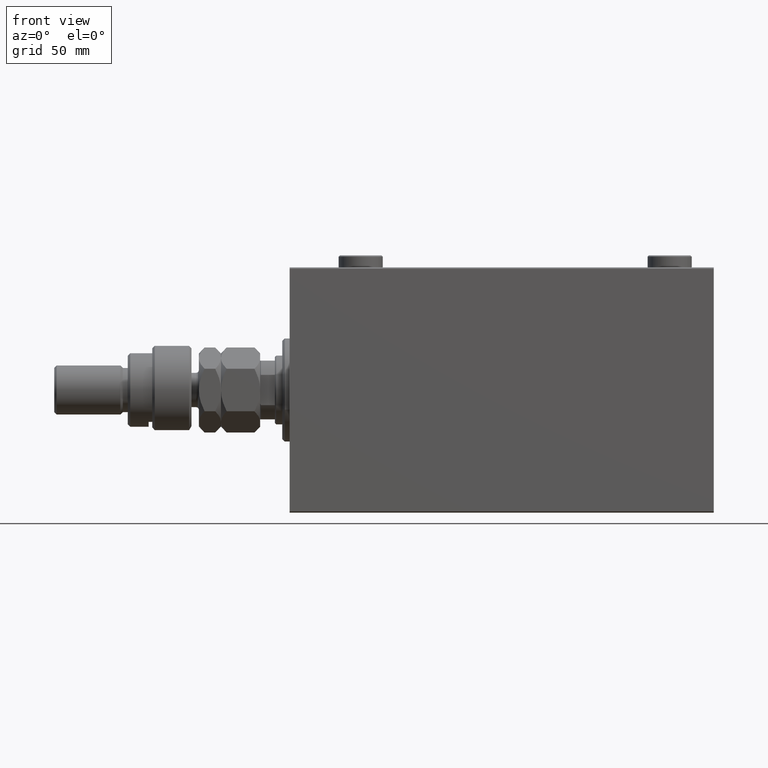
[diagram: clean part render]
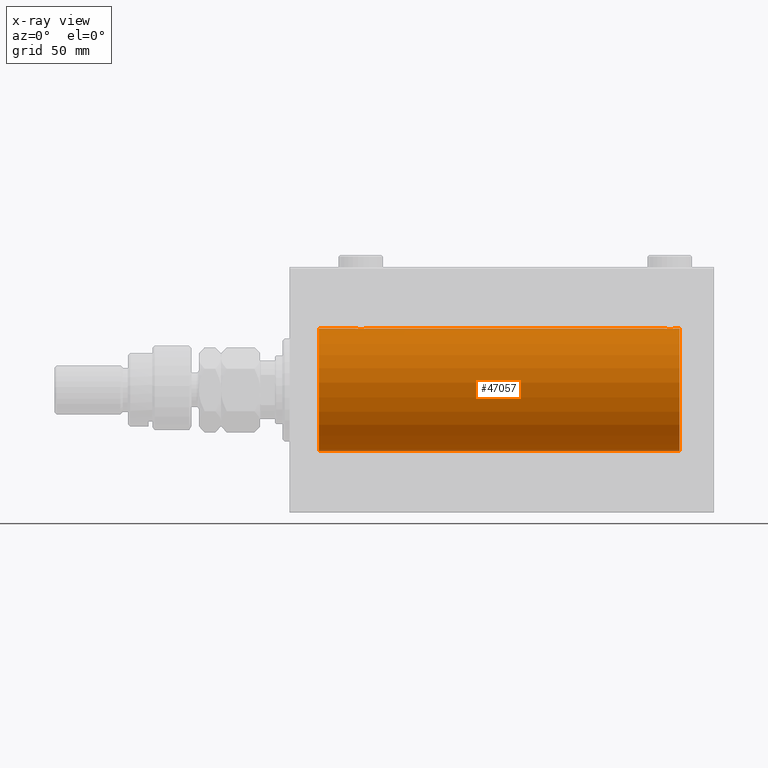
[diagram: x-ray — body ghosted, one internal face saturated and labeled with its STEP entity id]
A machine part, front view, then the same camera in x-ray: the body is ghosted and one INTERNAL B-rep face — a face not visible from any outside direction — is saturated and labeled: STEP entity #47057.
In plain terms, the highlighted cylindrical surface (partial cylindrical patch) has radius 25 mm, axis along (-1, -0, -0).
Its self-contained STEP definition (entity closure, byte-faithful):
#3 = CARTESIAN_POINT ( 'NONE',  ( 26.50000000000000355, -1.940558383798427991E-23, 25.00000000000000000 ) ) ;
#192 = CARTESIAN_POINT ( 'NONE',  ( 159.0000000000000000, 0.000000000000000000, 25.00000000000000000 ) ) ;
#864 = ORIENTED_EDGE ( 'NONE', *, *, #13426, .T. ) ;
#933 = CARTESIAN_POINT ( 'NONE',  ( 30.98749815834398547, -1.525407911884360868, -24.95379469572361941 ) ) ;
#960 = CARTESIAN_POINT ( 'NONE',  ( 28.35095609830903740, -2.419770561643910689, 24.88263927071751169 ) ) ;
#1096 = VERTEX_POINT ( 'NONE', #35780 ) ;
#1123 = CARTESIAN_POINT ( 'NONE',  ( 26.50000000000000355, -1.940558383798427991E-23, 25.00000000000000000 ) ) ;
#1200 = CARTESIAN_POINT ( 'NONE',  ( 31.16827641493957302, -1.255214705003178777, 24.96884293994577675 ) ) ;
#1308 = CARTESIAN_POINT ( 'NONE',  ( 152.5000000000000284, -1.941505016884693205E-23, 25.00000000000000000 ) ) ;
#2076 = AXIS2_PLACEMENT_3D ( 'NONE', #32610, #47707, #13884 ) ;
#2142 = CARTESIAN_POINT ( 'NONE',  ( 26.56650644760252789, -0.6588655613945865186, -24.99312727339970053 ) ) ;
#2173 = CARTESIAN_POINT ( 'NONE',  ( 157.4334935523974650, -0.6588655613945811895, 24.99312727339969697 ) ) ;
#2384 = CARTESIAN_POINT ( 'NONE',  ( 27.11814045851354749, -1.653834020452933373, -24.94550385189585739 ) ) ;
#2413 = CARTESIAN_POINT ( 'NONE',  ( 153.1158761721353585, -1.651251241585103724, 24.94567559498349141 ) ) ;
#2441 = CARTESIAN_POINT ( 'NONE',  ( 157.2476025101955202, -1.106703319666879848, -24.97594585958023572 ) ) ;
#2468 = DIRECTION ( 'NONE',  ( -1.000000000000000000, 0.000000000000000000, 0.000000000000000000 ) ) ;
#2679 = CARTESIAN_POINT ( 'NONE',  ( 156.5253618224308241, -1.987446652080262943, -24.92104239223420592 ) ) ;
#2887 = CARTESIAN_POINT ( 'NONE',  ( 156.1072384583841028, -2.247417070759893942, 24.89885693081946627 ) ) ;
#2918 = CARTESIAN_POINT ( 'NONE',  ( 155.8078834240581614, -2.371528299825743868, -24.88734287464371420 ) ) ;
#3130 = CARTESIAN_POINT ( 'NONE',  ( 152.7523974898044798, -1.106703319666880958, 24.97594585958023217 ) ) ;
#3415 = B_SPLINE_CURVE_WITH_KNOTS ( 'NONE', 3,
 ( #13380, #39416, #43561, #32348, #35756, #3130, #25042, #39893, #2413, #28704, #17995, #40128, #6539, #10197, #21403, #35511, #9718, #36231, #17039, #28458, #21639, #2887, #32832, #43315, #46728, #24810, #32111, #27983, #24330, #2173, #17759, #39659 ),
 .UNSPECIFIED., .F., .F.,
 ( 4, 2, 2, 2, 2, 2, 2, 2, 2, 2, 2, 2, 2, 2, 2, 4 ),
 ( 0.007821024441662296350, 0.008309723826317906223, 0.008798423210973516095, 0.009287122595629124233, 0.009775821980284732371, 0.01026452136494034224, 0.01075322074959595212, 0.01124192013425156025, 0.01173061951890716839, 0.01221931890356277826, 0.01270801828821838814, 0.01319671767287399627, 0.01368541705752960788, 0.01417411644218521602, 0.01466281582684082589, 0.01564021459615201268 ),
 .UNSPECIFIED. ) ;
#3462 = CARTESIAN_POINT ( 'NONE',  ( 12.00000000000001066, 3.061616997868382254E-15, -25.00000000000000000 ) ) ;
#3523 = EDGE_CURVE ( 'NONE', #18984, #30245, #23540, .T. ) ;
#3659 = CARTESIAN_POINT ( 'NONE',  ( 26.51582159942343253, -0.3254210271412225075, 24.99840249400844527 ) ) ;
#4325 = CARTESIAN_POINT ( 'NONE',  ( 159.0000000000000000, 0.000000000000000000, 0.000000000000000000 ) ) ;
#4346 = CARTESIAN_POINT ( 'NONE',  ( 31.50000000000000000, 3.061616978460586055E-15, -25.00000000000000000 ) ) ;
#4372 = CARTESIAN_POINT ( 'NONE',  ( 30.25084023924054932, -2.170728182476720836, 24.90574631553725027 ) ) ;
#4566 = CYLINDRICAL_SURFACE ( 'NONE', #25076, 25.00000000000000000 ) ;
#4589 = CARTESIAN_POINT ( 'NONE',  ( 31.24760251019550594, -1.106703319666880736, -24.97594585958023572 ) ) ;
#4618 = CARTESIAN_POINT ( 'NONE',  ( 31.24606379094067776, -1.109818057797414381, 24.97580694515543343 ) ) ;
#4620 = DIRECTION ( 'NONE',  ( -1.000000000000000000, -0.000000000000000000, -0.000000000000000000 ) ) ;
#4973 = DIRECTION ( 'NONE',  ( -1.000000000000000000, -0.000000000000000000, -0.000000000000000000 ) ) ;
#5069 = LINE ( 'NONE', #20167, #31647 ) ;
#5403 = CARTESIAN_POINT ( 'NONE',  ( 12.00000000000001066, 0.000000000000000000, 0.000000000000000000 ) ) ;
#5555 = CARTESIAN_POINT ( 'NONE',  ( 29.64904390169096970, -2.419770561643903584, -24.88263927071751525 ) ) ;
#5841 = VECTOR ( 'NONE', #4620, 1000.000000000000000 ) ;
#6212 = EDGE_CURVE ( 'NONE', #48020, #12065, #34189, .T. ) ;
#6332 = CARTESIAN_POINT ( 'NONE',  ( 154.1956433908370627, -2.372734907014177885, -24.88722742718433523 ) ) ;
#6539 = CARTESIAN_POINT ( 'NONE',  ( 153.8896320349114148, -2.245863995402900049, 24.89899750494197050 ) ) ;
#6810 = CARTESIAN_POINT ( 'NONE',  ( 152.5665064476025350, -0.6588655613945925138, -24.99312727339970408 ) ) ;
#7212 = VERTEX_POINT ( 'NONE', #33746 ) ;
#7465 = AXIS2_PLACEMENT_3D ( 'NONE', #5403, #2468, #17335 ) ;
#7549 = CARTESIAN_POINT ( 'NONE',  ( 28.19211657594193809, -2.371528299825748753, 24.88734287464370709 ) ) ;
#7740 = FACE_OUTER_BOUND ( 'NONE', #46467, .T. ) ;
#8030 = CARTESIAN_POINT ( 'NONE',  ( 28.67052319885731393, -2.483544361357271413, 24.87635491893501793 ) ) ;
#8206 = DIRECTION ( 'NONE',  ( -1.000000000000000000, -0.000000000000000000, -0.000000000000000000 ) ) ;
#8303 = ORIENTED_EDGE ( 'NONE', *, *, #22554, .T. ) ;
#8340 = CARTESIAN_POINT ( 'NONE',  ( 26.50000000000000355, -1.044046902370982825E-15, -25.00000000000000000 ) ) ;
#8626 = CARTESIAN_POINT ( 'NONE',  ( 159.0000000000000000, 0.000000000000000000, 25.00000000000000000 ) ) ;
#9278 = VERTEX_POINT ( 'NONE', #1308 ) ;
#9444 = CARTESIAN_POINT ( 'NONE',  ( 28.19564339083698457, -2.372734907014167227, -24.88722742718433878 ) ) ;
#9660 = VERTEX_POINT ( 'NONE', #36495 ) ;
#9690 = CARTESIAN_POINT ( 'NONE',  ( 26.83172358506043409, -1.255214705003176112, -24.96884293994578385 ) ) ;
#9718 = CARTESIAN_POINT ( 'NONE',  ( 154.8329350482194116, -2.499872792855079240, 24.87469871246083031 ) ) ;
#9860 = CIRCLE ( 'NONE', #2076, 25.00000000000000000 ) ;
#10197 = CARTESIAN_POINT ( 'NONE',  ( 154.1921165759419807, -2.371528299825747421, 24.88734287464370709 ) ) ;
#10252 = CARTESIAN_POINT ( 'NONE',  ( 26.75239748980448340, -1.106703319666886731, 24.97594585958023572 ) ) ;
#10464 = CARTESIAN_POINT ( 'NONE',  ( 153.4774322565980924, -1.989585286700259248, -24.92087098724765681 ) ) ;
#10695 = CARTESIAN_POINT ( 'NONE',  ( 152.5000000000000284, -1.405387377138226638E-14, -25.00000000000000000 ) ) ;
#11887 = CARTESIAN_POINT ( 'NONE',  ( 31.42014909220928942, -0.6480119923854199548, -24.99212088949390775 ) ) ;
#12065 = VERTEX_POINT ( 'NONE', #21905 ) ;
#12587 = LINE ( 'NONE', #16254, #40097 ) ;
#12867 = CARTESIAN_POINT ( 'NONE',  ( 29.16706495178059910, -2.499872792855075687, -24.87469871246082320 ) ) ;
#13117 = ORIENTED_EDGE ( 'NONE', *, *, #16117, .T. ) ;
#13380 = CARTESIAN_POINT ( 'NONE',  ( 152.5000000000000284, -1.941505016884693205E-23, 25.00000000000000000 ) ) ;
#13426 = EDGE_CURVE ( 'NONE', #29763, #9660, #27745, .T. ) ;
#13481 = EDGE_CURVE ( 'NONE', #9278, #45665, #3415, .T. ) ;
#13594 = CARTESIAN_POINT ( 'NONE',  ( 26.75393620905932934, -1.109818057797413493, -24.97580694515541921 ) ) ;
#13647 = CARTESIAN_POINT ( 'NONE',  ( 156.9874981583440956, -1.525407911884359535, -24.95379469572363007 ) ) ;
#13884 = DIRECTION ( 'NONE',  ( 0.000000000000000000, 0.000000000000000000, 1.000000000000000000 ) ) ;
#13918 = CARTESIAN_POINT ( 'NONE',  ( 26.62784030591392792, -0.8058335233485491855, 24.98746277938382576 ) ) ;
#14128 = CARTESIAN_POINT ( 'NONE',  ( 157.4201490922093001, -0.6480119923854171793, -24.99212088949391131 ) ) ;
#14374 = CARTESIAN_POINT ( 'NONE',  ( 154.6740342996054096, -2.484007091859770089, -24.87630842367762796 ) ) ;
#14819 = DIRECTION ( 'NONE',  ( -1.000000000000000000, -0.000000000000000000, -0.000000000000000000 ) ) ;
#14844 = CARTESIAN_POINT ( 'NONE',  ( 152.5000000000000284, -1.405387377138226638E-14, -25.00000000000000000 ) ) ;
#14871 = CARTESIAN_POINT ( 'NONE',  ( 26.57985090779071058, -0.6480119923854229524, 24.99212088949391131 ) ) ;
#14883 = ORIENTED_EDGE ( 'NONE', *, *, #13481, .T. ) ;
#15288 = ORIENTED_EDGE ( 'NONE', *, *, #30500, .F. ) ;
#15445 = EDGE_CURVE ( 'NONE', #9278, #12065, #12587, .T. ) ;
#15801 = CARTESIAN_POINT ( 'NONE',  ( 30.88412382786472321, -1.651251241585099061, -24.94567559498349496 ) ) ;
#15829 = CARTESIAN_POINT ( 'NONE',  ( 31.43349355239748277, -0.6588655613945849643, 24.99312727339970053 ) ) ;
#16012 = ORIENTED_EDGE ( 'NONE', *, *, #15445, .F. ) ;
#16117 = EDGE_CURVE ( 'NONE', #30245, #30010, #43239, .T. ) ;
#16254 = CARTESIAN_POINT ( 'NONE',  ( 159.0000000000000000, 0.000000000000000000, 25.00000000000000000 ) ) ;
#16447 = B_SPLINE_CURVE_WITH_KNOTS ( 'NONE', 3,
 ( #46993, #24592, #21428, #14128, #36015, #2441, #43341, #13647, #28482, #24833, #2679, #18021, #20707, #2918, #17544, #47230, #39681, #43105, #14374, #17787, #6332, #28970, #17067, #10464, #21668, #25310, #35536, #29213, #44061, #6810, #36500, #10695 ),
 .UNSPECIFIED., .F., .F.,
 ( 4, 2, 2, 2, 2, 2, 2, 2, 2, 2, 2, 2, 2, 2, 2, 4 ),
 ( 0.007821024441662285942, 0.008309723826317894080, 0.008798423210973503952, 0.009287122595629112090, 0.009775821980284720228, 0.01026452136494033010, 0.01075322074959593824, 0.01124192013425154638, 0.01173061951890715451, 0.01221931890356276265, 0.01270801828821837426, 0.01319671767287398240, 0.01368541705752959053, 0.01417411644218519867, 0.01466281582684080681, 0.01564021459615199186 ),
 .UNSPECIFIED. ) ;
#16767 = CARTESIAN_POINT ( 'NONE',  ( 27.34878866440888245, -1.884161199660611574, -24.92916496727982079 ) ) ;
#16890 = VECTOR ( 'NONE', #4973, 1000.000000000000000 ) ;
#16933 = VECTOR ( 'NONE', #40644, 1000.000000000000000 ) ;
#16991 = ORIENTED_EDGE ( 'NONE', *, *, #41926, .T. ) ;
#17039 = CARTESIAN_POINT ( 'NONE',  ( 155.3259657003945904, -2.484007091859763872, 24.87630842367762796 ) ) ;
#17067 = CARTESIAN_POINT ( 'NONE',  ( 153.7491597607594827, -2.170728182476731938, -24.90574631553725027 ) ) ;
#17335 = DIRECTION ( 'NONE',  ( 0.000000000000000000, 0.000000000000000000, 1.000000000000000000 ) ) ;
#17544 = CARTESIAN_POINT ( 'NONE',  ( 155.6490439016910443, -2.419770561643905804, -24.88263927071751525 ) ) ;
#17759 = CARTESIAN_POINT ( 'NONE',  ( 157.5000000000000284, -0.3305063766663748903, 24.99999999999999289 ) ) ;
#17787 = CARTESIAN_POINT ( 'NONE',  ( 154.3543933385137166, -2.420689345803768155, -24.88254961038873603 ) ) ;
#17813 = CARTESIAN_POINT ( 'NONE',  ( 27.88963203491136511, -2.245863995402902269, 24.89899750494197761 ) ) ;
#17995 = CARTESIAN_POINT ( 'NONE',  ( 153.4746381775692328, -1.987446652080256948, 24.92104239223420592 ) ) ;
#18021 = CARTESIAN_POINT ( 'NONE',  ( 156.2538319542450154, -2.169003991399872433, -24.90589728951138326 ) ) ;
#18450 = VERTEX_POINT ( 'NONE', #192 ) ;
#18984 = VERTEX_POINT ( 'NONE', #8340 ) ;
#19006 = CARTESIAN_POINT ( 'NONE',  ( 30.65121133559112820, -1.884161199660616459, 24.92916496727982434 ) ) ;
#19208 = CARTESIAN_POINT ( 'NONE',  ( 31.49999999999998579, -0.1631750940176181774, -25.00000000000000355 ) ) ;
#19449 = CARTESIAN_POINT ( 'NONE',  ( 31.17011290280924385, -1.252049606094333800, -24.96900299967627390 ) ) ;
#19480 = CARTESIAN_POINT ( 'NONE',  ( 31.50000000000000000, -0.3305063766663733360, 25.00000000000000000 ) ) ;
#20167 = CARTESIAN_POINT ( 'NONE',  ( 159.0000000000000000, 3.061616997868382254E-15, -25.00000000000000000 ) ) ;
#20490 = ORIENTED_EDGE ( 'NONE', *, *, #22933, .F. ) ;
#20658 = CARTESIAN_POINT ( 'NONE',  ( 27.74915976075944712, -2.170728182476712842, -24.90574631553725027 ) ) ;
#20707 = CARTESIAN_POINT ( 'NONE',  ( 156.1103679650886704, -2.245863995402892943, -24.89899750494197406 ) ) ;
#21134 = CARTESIAN_POINT ( 'NONE',  ( 27.47743225659811017, -1.989585286700239486, -24.92087098724765326 ) ) ;
#21403 = CARTESIAN_POINT ( 'NONE',  ( 154.3509560983090978, -2.419770561643906248, 24.88263927071751169 ) ) ;
#21428 = CARTESIAN_POINT ( 'NONE',  ( 157.4841784005766101, -0.3254210271412171229, -24.99840249400844527 ) ) ;
#21639 = CARTESIAN_POINT ( 'NONE',  ( 155.8043566091630510, -2.372734907014173000, 24.88722742718433878 ) ) ;
#21668 = CARTESIAN_POINT ( 'NONE',  ( 153.3487886644088860, -1.884161199660627783, -24.92916496727982079 ) ) ;
#21905 = CARTESIAN_POINT ( 'NONE',  ( 31.50000000000000000, -4.224067783497237755E-16, 25.00000000000000000 ) ) ;
#22410 = CARTESIAN_POINT ( 'NONE',  ( 29.64560666148631896, -2.420689345803760606, 24.88254961038873958 ) ) ;
#22554 = EDGE_CURVE ( 'NONE', #1096, #7212, #5069, .T. ) ;
#22933 = EDGE_CURVE ( 'NONE', #18450, #45665, #27131, .T. ) ;
#23052 = DIRECTION ( 'NONE',  ( -1.000000000000000000, -0.000000000000000000, -0.000000000000000000 ) ) ;
#23366 = CARTESIAN_POINT ( 'NONE',  ( 30.98538033717095530, -1.528152964861310359, 24.95362559291379156 ) ) ;
#23540 = LINE ( 'NONE', #45690, #45291 ) ;
#23821 = CARTESIAN_POINT ( 'NONE',  ( 27.89276154161589716, -2.247417070759890390, -24.89885693081946982 ) ) ;
#24066 = CARTESIAN_POINT ( 'NONE',  ( 28.67403429960540251, -2.484007091859758098, -24.87630842367763151 ) ) ;
#24330 = CARTESIAN_POINT ( 'NONE',  ( 157.2460637909406955, -1.109818057797409718, 24.97580694515542632 ) ) ;
#24592 = CARTESIAN_POINT ( 'NONE',  ( 157.5000000000000284, -0.1631750940176158182, -25.00000000000000000 ) ) ;
#24740 = ORIENTED_EDGE ( 'NONE', *, *, #36915, .T. ) ;
#24810 = CARTESIAN_POINT ( 'NONE',  ( 156.8818595414864490, -1.653834020452942477, 24.94550385189585029 ) ) ;
#24833 = CARTESIAN_POINT ( 'NONE',  ( 156.6538333614934402, -1.881857718844723415, -24.92933960374834257 ) ) ;
#25042 = CARTESIAN_POINT ( 'NONE',  ( 152.8298870971907775, -1.252049606094326695, 24.96900299967627390 ) ) ;
#25076 = AXIS2_PLACEMENT_3D ( 'NONE', #4325, #14819, #33302 ) ;
#25101 = CARTESIAN_POINT ( 'NONE',  ( 27.47463817756919724, -1.987446652080264275, 24.92104239223420592 ) ) ;
#25310 = CARTESIAN_POINT ( 'NONE',  ( 153.1181404585136079, -1.653834020452949805, -24.94550385189584674 ) ) ;
#26052 = CARTESIAN_POINT ( 'NONE',  ( 31.50000000000000000, -4.224067783497237755E-16, 25.00000000000000000 ) ) ;
#26976 = DIRECTION ( 'NONE',  ( -1.000000000000000000, -0.000000000000000000, -0.000000000000000000 ) ) ;
#27131 = LINE ( 'NONE', #8626, #16890 ) ;
#27717 = CARTESIAN_POINT ( 'NONE',  ( 26.50000000000000355, -1.044046902370982825E-15, -25.00000000000000000 ) ) ;
#27745 = LINE ( 'NONE', #42592, #5841 ) ;
#27954 = CARTESIAN_POINT ( 'NONE',  ( 28.83676410361456988, -2.500125740978188738, -24.87467329022545570 ) ) ;
#27983 = CARTESIAN_POINT ( 'NONE',  ( 157.1682764149396121, -1.255214705003166564, 24.96884293994578385 ) ) ;
#28458 = CARTESIAN_POINT ( 'NONE',  ( 155.6456066614863403, -2.420689345803761938, 24.88254961038872892 ) ) ;
#28482 = CARTESIAN_POINT ( 'NONE',  ( 156.8841238278647268, -1.651251241585108165, -24.94567559498349141 ) ) ;
#28704 = CARTESIAN_POINT ( 'NONE',  ( 153.3461666385066451, -1.881857718844717642, 24.92933960374833546 ) ) ;
#28798 = EDGE_CURVE ( 'NONE', #1096, #18450, #9860, .T. ) ;
#28916 = CARTESIAN_POINT ( 'NONE',  ( 12.00000000000001066, 0.000000000000000000, 25.00000000000000000 ) ) ;
#28970 = CARTESIAN_POINT ( 'NONE',  ( 153.8927615416158687, -2.247417070759900604, -24.89885693081946627 ) ) ;
#29213 = CARTESIAN_POINT ( 'NONE',  ( 152.8317235850604732, -1.255214705003193432, -24.96884293994577675 ) ) ;
#29714 = CARTESIAN_POINT ( 'NONE',  ( 26.82988709719076681, -1.252049606094339351, 24.96900299967627390 ) ) ;
#29763 = VERTEX_POINT ( 'NONE', #14844 ) ;
#30010 = VERTEX_POINT ( 'NONE', #28916 ) ;
#30186 = CARTESIAN_POINT ( 'NONE',  ( 29.32596570039460104, -2.484007091859765204, 24.87630842367763506 ) ) ;
#30245 = VERTEX_POINT ( 'NONE', #3462 ) ;
#30500 = EDGE_CURVE ( 'NONE', #48020, #30010, #39693, .T. ) ;
#30636 = CARTESIAN_POINT ( 'NONE',  ( 30.65383336149337623, -1.881857718844712979, -24.92933960374833902 ) ) ;
#30664 = CARTESIAN_POINT ( 'NONE',  ( 28.83293504821940445, -2.499872792855083681, 24.87469871246083031 ) ) ;
#31363 = CARTESIAN_POINT ( 'NONE',  ( 30.52536182243081342, -1.987446652080257392, -24.92104239223420592 ) ) ;
#31597 = CARTESIAN_POINT ( 'NONE',  ( 26.50000000000000000, -0.3305063766663753899, -24.99999999999999645 ) ) ;
#31647 = VECTOR ( 'NONE', #26976, 1000.000000000000000 ) ;
#32078 = CARTESIAN_POINT ( 'NONE',  ( 30.25383195424502603, -2.169003991399864439, -24.90589728951138326 ) ) ;
#32111 = CARTESIAN_POINT ( 'NONE',  ( 156.9853803371709660, -1.528152964861297258, 24.95362559291378446 ) ) ;
#32321 = CARTESIAN_POINT ( 'NONE',  ( 28.35439333851368104, -2.420689345803754833, -24.88254961038873248 ) ) ;
#32348 = CARTESIAN_POINT ( 'NONE',  ( 152.5798509077907283, -0.6480119923854213981, 24.99212088949391131 ) ) ;
#32399 = CARTESIAN_POINT ( 'NONE',  ( 27.34616663850663443, -1.881857718844720528, 24.92933960374834967 ) ) ;
#32610 = CARTESIAN_POINT ( 'NONE',  ( 159.0000000000000000, 0.000000000000000000, 0.000000000000000000 ) ) ;
#32832 = CARTESIAN_POINT ( 'NONE',  ( 156.2508402392405458, -2.170728182476725276, 24.90574631553724672 ) ) ;
#33302 = DIRECTION ( 'NONE',  ( 0.000000000000000000, 0.000000000000000000, 1.000000000000000000 ) ) ;
#33591 = CARTESIAN_POINT ( 'NONE',  ( 30.88185954148647028, -1.653834020452937592, 24.94550385189585029 ) ) ;
#33746 = CARTESIAN_POINT ( 'NONE',  ( 157.5000000000000284, 3.061616978453880738E-15, -25.00000000000000000 ) ) ;
#34189 = B_SPLINE_CURVE_WITH_KNOTS ( 'NONE', 3,
 ( #3, #37004, #3659, #14871, #13918, #10252, #29714, #36043, #44566, #32399, #25101, #36287, #17813, #7549, #960, #8030, #30664, #37722, #30186, #22410, #41616, #37966, #4372, #37242, #19006, #33591, #23366, #1200, #4618, #15829, #19480, #26052 ),
 .UNSPECIFIED., .F., .F.,
 ( 4, 2, 2, 2, 2, 2, 2, 2, 2, 2, 2, 2, 2, 2, 2, 4 ),
 ( 0.007821024441662294616, 0.008309723826317901019, 0.008798423210973509156, 0.009287122595629115560, 0.009775821980284721963, 0.01026452136494032837, 0.01075322074959593477, 0.01124192013425154291, 0.01173061951890714757, 0.01221931890356275571, 0.01270801828821836212, 0.01319671767287396852, 0.01368541705752957666, 0.01417411644218518479, 0.01466281582684079120, 0.01564021459615200574 ),
 .UNSPECIFIED. ) ;
#34756 = ORIENTED_EDGE ( 'NONE', *, *, #6212, .T. ) ;
#35479 = CARTESIAN_POINT ( 'NONE',  ( 29.32947680114268962, -2.483544361357263863, -24.87635491893501083 ) ) ;
#35511 = CARTESIAN_POINT ( 'NONE',  ( 154.6705231988573246, -2.483544361357268304, 24.87635491893501793 ) ) ;
#35536 = CARTESIAN_POINT ( 'NONE',  ( 153.0146196628290909, -1.528152964861322793, -24.95362559291379156 ) ) ;
#35727 = CARTESIAN_POINT ( 'NONE',  ( 30.11036796508863844, -2.245863995402894719, -24.89899750494197406 ) ) ;
#35756 = CARTESIAN_POINT ( 'NONE',  ( 152.6278403059139919, -0.8058335233485443005, 24.98746277938383287 ) ) ;
#35780 = CARTESIAN_POINT ( 'NONE',  ( 159.0000000000000000, 3.061616997868382254E-15, -25.00000000000000000 ) ) ;
#36015 = CARTESIAN_POINT ( 'NONE',  ( 157.3721596940860081, -0.8058335233485425242, -24.98746277938382221 ) ) ;
#36043 = CARTESIAN_POINT ( 'NONE',  ( 27.01250184165601809, -1.525407911884366863, 24.95379469572362297 ) ) ;
#36231 = CARTESIAN_POINT ( 'NONE',  ( 155.1632358963854585, -2.500125740978193178, 24.87467329022544504 ) ) ;
#36287 = CARTESIAN_POINT ( 'NONE',  ( 27.74616804575498463, -2.169003991399872433, 24.90589728951139392 ) ) ;
#36495 = CARTESIAN_POINT ( 'NONE',  ( 31.50000000000000000, 3.061616978460586055E-15, -25.00000000000000000 ) ) ;
#36500 = CARTESIAN_POINT ( 'NONE',  ( 152.5000000000000568, -0.3305063766663885461, -25.00000000000001066 ) ) ;
#36915 = EDGE_CURVE ( 'NONE', #9660, #18984, #41739, .T. ) ;
#37004 = CARTESIAN_POINT ( 'NONE',  ( 26.50000000000000355, -0.1631750940176212028, 25.00000000000000355 ) ) ;
#37242 = CARTESIAN_POINT ( 'NONE',  ( 30.52256774340189338, -1.989585286700246813, 24.92087098724766037 ) ) ;
#37722 = CARTESIAN_POINT ( 'NONE',  ( 29.16323589638543723, -2.500125740978196731, 24.87467329022545570 ) ) ;
#37939 = CARTESIAN_POINT ( 'NONE',  ( 31.37215969408608274, -0.8058335233485440785, -24.98746277938383997 ) ) ;
#37966 = CARTESIAN_POINT ( 'NONE',  ( 30.10723845838410639, -2.247417070759895719, 24.89885693081946272 ) ) ;
#39416 = CARTESIAN_POINT ( 'NONE',  ( 152.5000000000000853, -0.1631750940176186493, 25.00000000000001066 ) ) ;
#39659 = CARTESIAN_POINT ( 'NONE',  ( 157.5000000000000284, 1.404322005998729010E-15, 25.00000000000000000 ) ) ;
#39681 = CARTESIAN_POINT ( 'NONE',  ( 155.1670649517806453, -2.499872792855085013, -24.87469871246083031 ) ) ;
#39693 = LINE ( 'NONE', #43597, #16933 ) ;
#39814 = CARTESIAN_POINT ( 'NONE',  ( 157.5000000000000284, 1.404322005998729010E-15, 25.00000000000000000 ) ) ;
#39893 = CARTESIAN_POINT ( 'NONE',  ( 153.0125018416559897, -1.525407911884356205, 24.95379469572361586 ) ) ;
#40097 = VECTOR ( 'NONE', #8206, 1000.000000000000000 ) ;
#40128 = CARTESIAN_POINT ( 'NONE',  ( 153.7461680457550415, -2.169003991399866216, 24.90589728951138682 ) ) ;
#40644 = DIRECTION ( 'NONE',  ( -1.000000000000000000, -0.000000000000000000, -0.000000000000000000 ) ) ;
#40810 = ORIENTED_EDGE ( 'NONE', *, *, #28798, .F. ) ;
#41616 = CARTESIAN_POINT ( 'NONE',  ( 29.80435660916302609, -2.372734907014173888, 24.88722742718433878 ) ) ;
#41739 = B_SPLINE_CURVE_WITH_KNOTS ( 'NONE', 3,
 ( #4346, #19208, #45250, #11887, #37939, #4589, #19449, #933, #15801, #30636, #31363, #32078, #35727, #47172, #5555, #35479, #12867, #27954, #24066, #32321, #9444, #23821, #20658, #21134, #16767, #2384, #43286, #9690, #13594, #2142, #31597, #27717 ),
 .UNSPECIFIED., .F., .F.,
 ( 4, 2, 2, 2, 2, 2, 2, 2, 2, 2, 2, 2, 2, 2, 2, 4 ),
 ( 0.007821024441662306759, 0.008309723826317914896, 0.008798423210973524769, 0.009287122595629129437, 0.009775821980284734106, 0.01026452136494033877, 0.01075322074959594344, 0.01124192013425154985, 0.01173061951890715451, 0.01221931890356275918, 0.01270801828821836385, 0.01319671767287396852, 0.01368541705752957492, 0.01417411644218518132, 0.01466281582684078599, 0.01564021459615200227 ),
 .UNSPECIFIED. ) ;
#41926 = EDGE_CURVE ( 'NONE', #7212, #29763, #16447, .T. ) ;
#42592 = CARTESIAN_POINT ( 'NONE',  ( 159.0000000000000000, 3.061616997868382254E-15, -25.00000000000000000 ) ) ;
#43105 = CARTESIAN_POINT ( 'NONE',  ( 154.8367641036145415, -2.500125740978199840, -24.87467329022544504 ) ) ;
#43239 = CIRCLE ( 'NONE', #7465, 25.00000000000000000 ) ;
#43286 = CARTESIAN_POINT ( 'NONE',  ( 27.01461966282905891, -1.528152964861305696, -24.95362559291378801 ) ) ;
#43315 = CARTESIAN_POINT ( 'NONE',  ( 156.5225677434019076, -1.989585286700252809, 24.92087098724766747 ) ) ;
#43341 = CARTESIAN_POINT ( 'NONE',  ( 157.1701129028093362, -1.252049606094329581, -24.96900299967627745 ) ) ;
#43561 = CARTESIAN_POINT ( 'NONE',  ( 152.5158215994234183, -0.3254210271412208977, 24.99840249400844527 ) ) ;
#43597 = CARTESIAN_POINT ( 'NONE',  ( 159.0000000000000000, 0.000000000000000000, 25.00000000000000000 ) ) ;
#44061 = CARTESIAN_POINT ( 'NONE',  ( 152.7539362090593613, -1.109818057797422375, -24.97580694515542632 ) ) ;
#44244 = ORIENTED_EDGE ( 'NONE', *, *, #3523, .T. ) ;
#44566 = CARTESIAN_POINT ( 'NONE',  ( 27.11587617213528745, -1.651251241585106166, 24.94567559498348430 ) ) ;
#45250 = CARTESIAN_POINT ( 'NONE',  ( 31.48417840057656747, -0.3254210271412201205, -24.99840249400844527 ) ) ;
#45291 = VECTOR ( 'NONE', #23052, 1000.000000000000000 ) ;
#45665 = VERTEX_POINT ( 'NONE', #39814 ) ;
#45690 = CARTESIAN_POINT ( 'NONE',  ( 159.0000000000000000, 3.061616997868382254E-15, -25.00000000000000000 ) ) ;
#46467 = EDGE_LOOP ( 'NONE', ( #40810, #8303, #16991, #864, #24740, #44244, #13117, #15288, #34756, #16012, #14883, #20490 ) ) ;
#46728 = CARTESIAN_POINT ( 'NONE',  ( 156.6512113355911424, -1.884161199660621344, 24.92916496727982789 ) ) ;
#46993 = CARTESIAN_POINT ( 'NONE',  ( 157.5000000000000284, 3.061616978453880738E-15, -25.00000000000000000 ) ) ;
#47057 = ADVANCED_FACE ( 'NONE', ( #7740 ), #4566, .F. ) ;
#47172 = CARTESIAN_POINT ( 'NONE',  ( 29.80788342405805480, -2.371528299825740760, -24.88734287464370709 ) ) ;
#47230 = CARTESIAN_POINT ( 'NONE',  ( 155.3294768011427891, -2.483544361357270969, -24.87635491893502149 ) ) ;
#47707 = DIRECTION ( 'NONE',  ( -1.000000000000000000, 0.000000000000000000, 0.000000000000000000 ) ) ;
#48020 = VERTEX_POINT ( 'NONE', #1123 ) ;